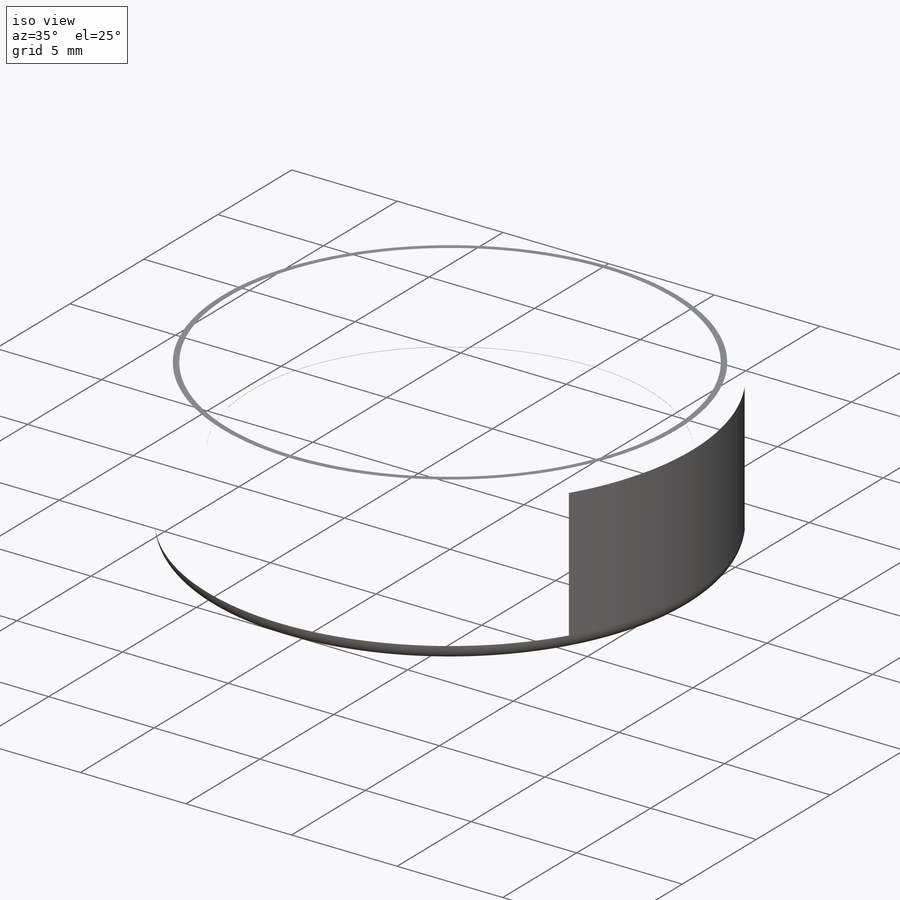
[diagram: iso view]
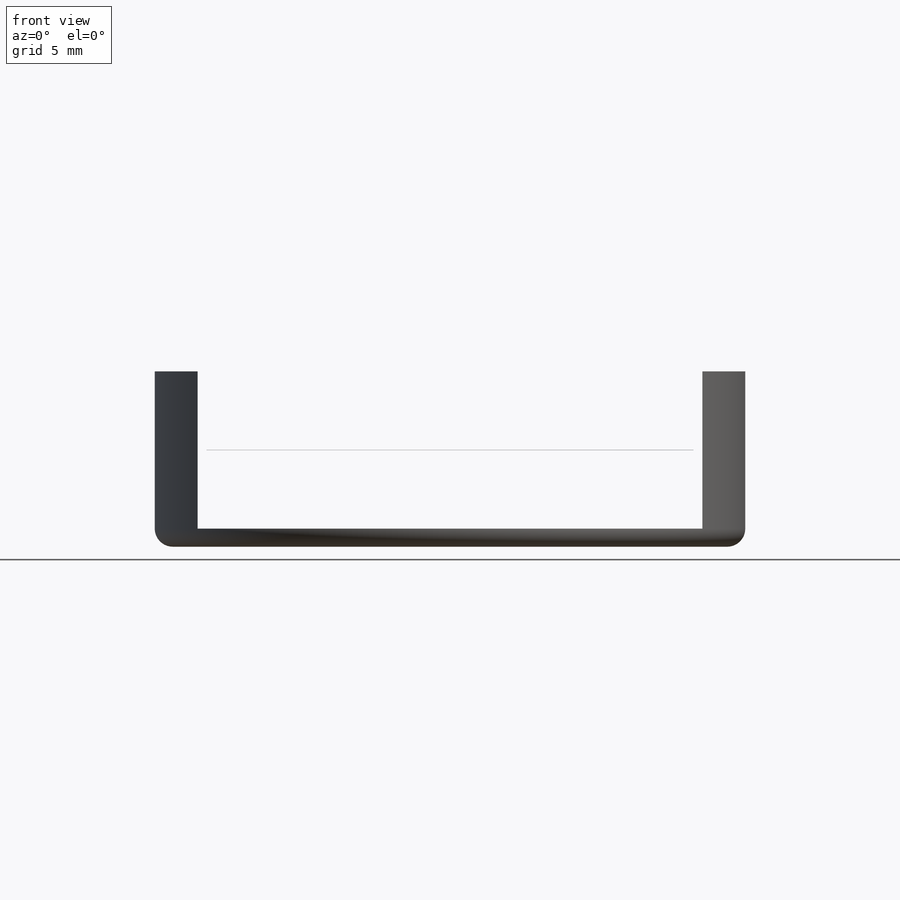
[diagram: front view]
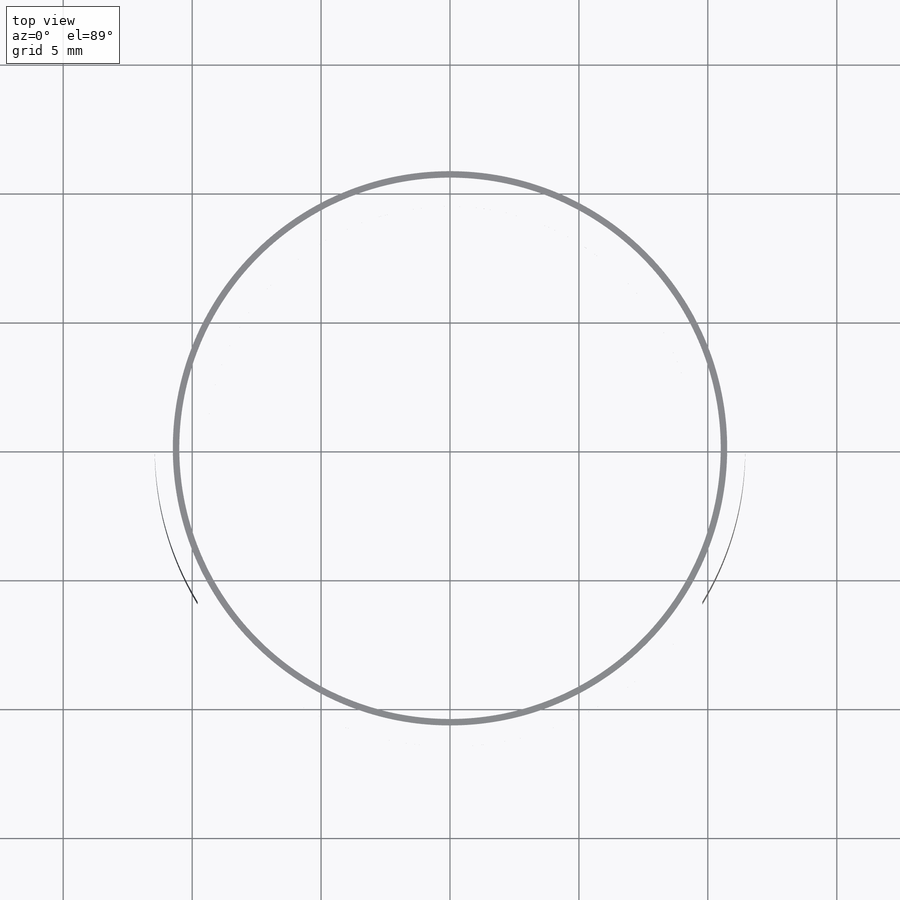
[diagram: top view]
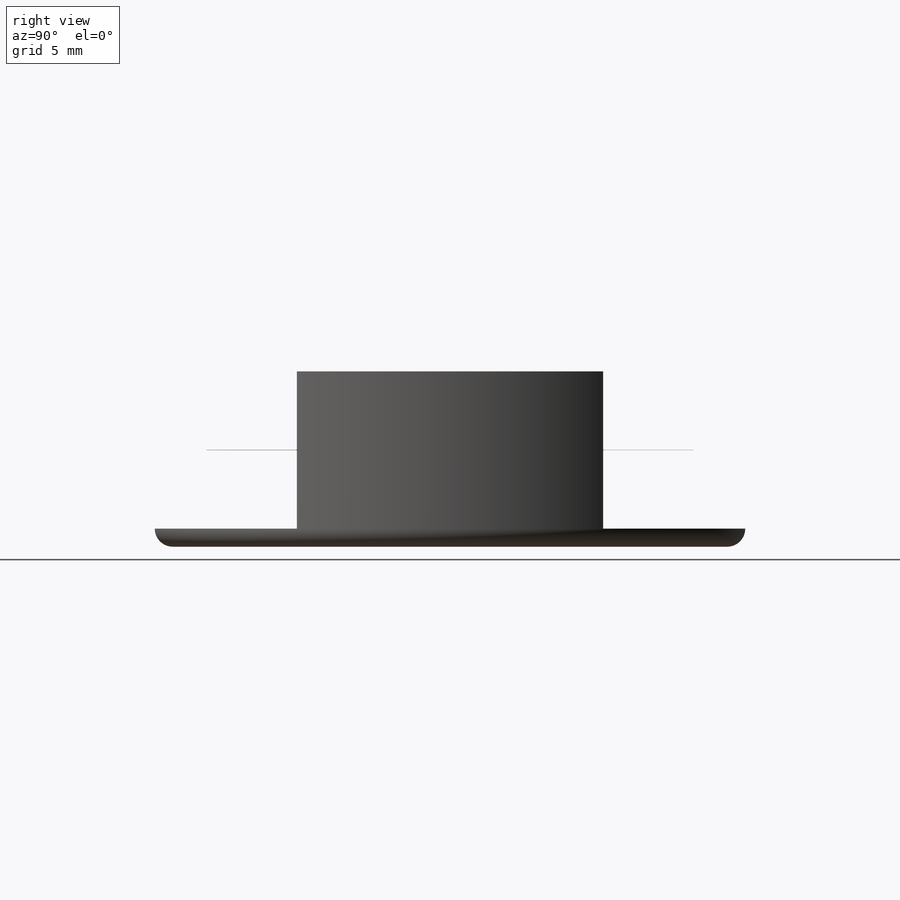
[diagram: right view]
SOLIDWORKS PART (.sldprt)
format: sldprt  version: not decoded by parser v0  size: 2,518,528 bytes
history: native  units: mm
features: sketch x3, fillet x2, cut_revolve x2, material x1, extrude x1, mirror x1 (+12 scaffold rows collapsed)
feature tree (22):
  scaffold x12  (default folders/planes/origin — collapsed)
  material  "Material <not specified>"
  sketch  "Sketch1"  dims[D1=15.27mm D2=2.0mm]
  extrude  "Boss-Extrude1"  Depth=3.75mm
  fillet  "Fillet1"  Radius=0.7mm
  sketch  "Sketch3"  dims[c1.D1=~7.47161mm c1.D3=15.0mm c2.D1=1.5mm c2.D2=1.25mm c2.D4=3.745mm c2.D5=~1.54682mm]
  cut_revolve  "Cut-Revolve1"  Angle=360deg
  fillet  "Fillet3"  Radius=0.7mm
  sketch  "Sketch4"  dims[D1=1.3mm D2=0.7mm D3=~0.046136mm]
  cut_revolve  "Cut-Revolve2"  Angle=64.825deg
  mirror  "Mirror3"
decode coverage: 8 of 9 modeling features carry decoded parameters
note: ~ marks probable driven/reference dimensions
note: suppression state not decoded; provenance and decode notes live in map.json
